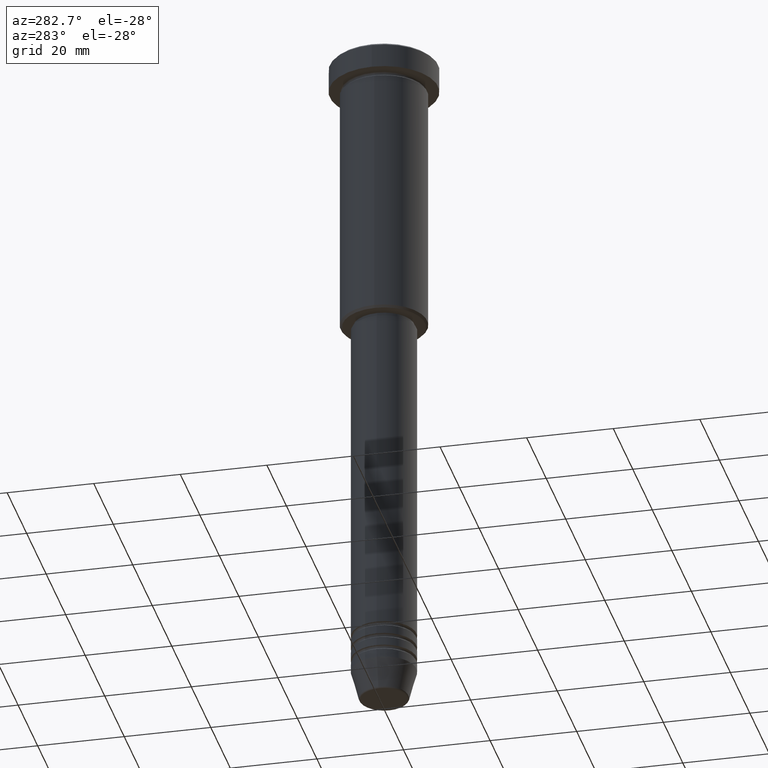
[diagram: clean part render]
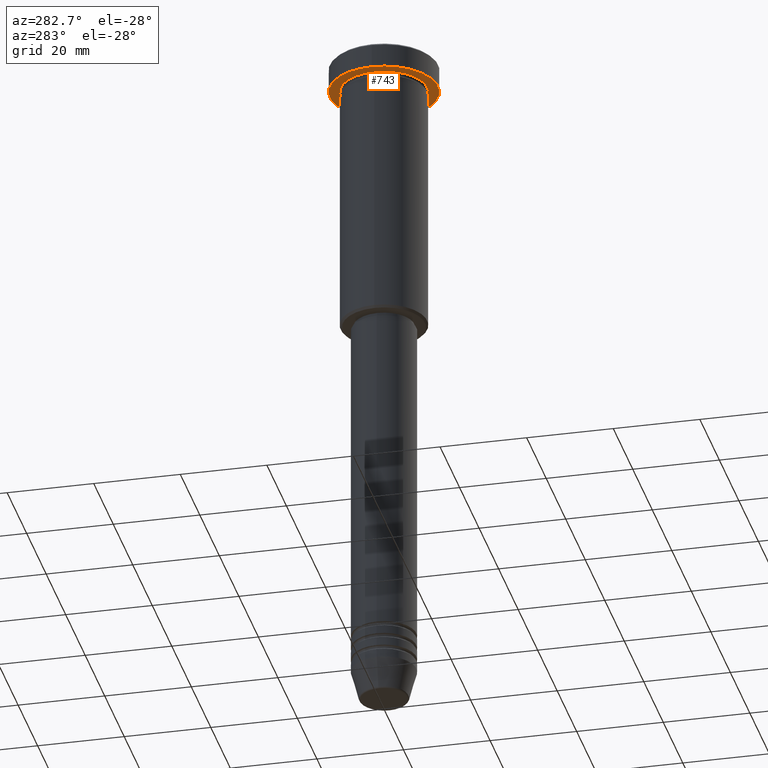
[diagram: same view with one face highlighted and labeled with its STEP entity id]
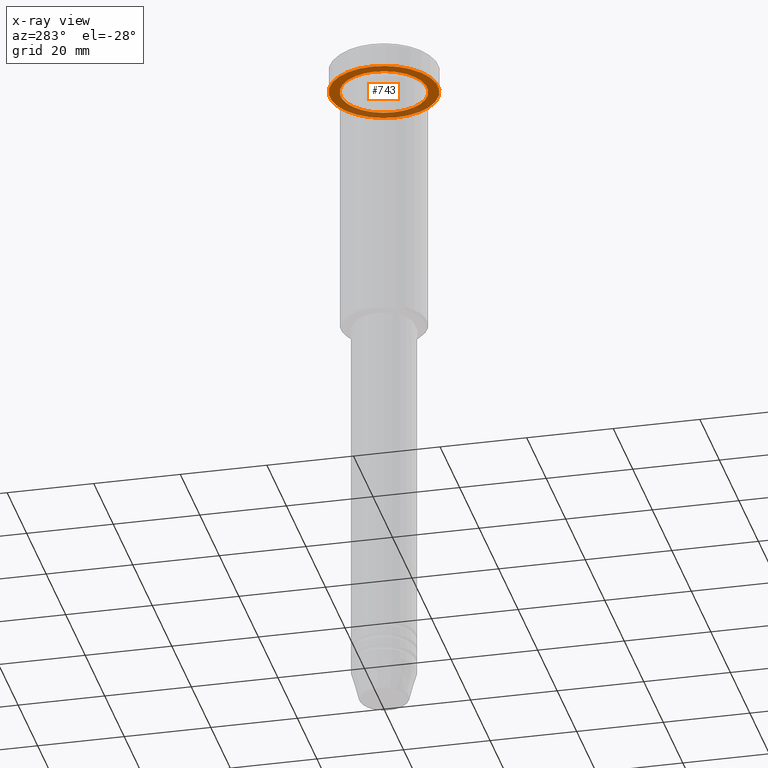
[diagram: x-ray of the same camera — body ghosted, the highlighted face saturated]
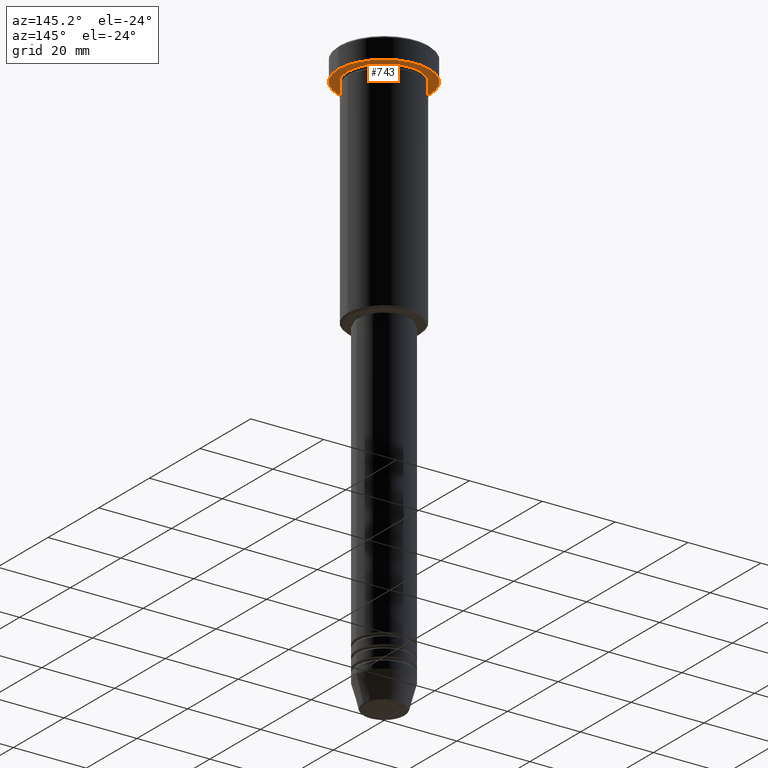
[diagram: same view with one face highlighted and labeled with its STEP entity id]
A machine part, auxiliary view. The second image highlights one B-rep face of the part: STEP entity #743.
The next image is the same camera in x-ray: the body ghosted, the highlighted face saturated — about 25% of this face is hidden behind the body in this view.
A second angle (auxiliary view) of the same face is appended — the face is thin or edge-on in the first view.
In plain terms, the highlighted planar face has unit normal (0, 0, -1).
Its self-contained STEP definition (entity closure, byte-faithful):
#9 = CIRCLE ( 'NONE', #1032, 12.50000000000000000 ) ;
#22 = CARTESIAN_POINT ( 'NONE',  ( 10.00000000000000000, 1.224646799147353256E-15, -5.999999999999996447 ) ) ;
#31 = CIRCLE ( 'NONE', #252, 10.00000000000000000 ) ;
#65 = ORIENTED_EDGE ( 'NONE', *, *, #182, .F. ) ;
#78 = DIRECTION ( 'NONE',  ( -1.000000000000000000, 0.000000000000000000, -0.000000000000000000 ) ) ;
#130 = ORIENTED_EDGE ( 'NONE', *, *, #472, .F. ) ;
#137 = EDGE_LOOP ( 'NONE', ( #130, #65 ) ) ;
#141 = DIRECTION ( 'NONE',  ( 0.000000000000000000, 0.000000000000000000, -1.000000000000000000 ) ) ;
#149 = ORIENTED_EDGE ( 'NONE', *, *, #1010, .T. ) ;
#151 = CIRCLE ( 'NONE', #438, 12.50000000000000000 ) ;
#182 = EDGE_CURVE ( 'NONE', #742, #812, #151, .T. ) ;
#203 = DIRECTION ( 'NONE',  ( -0.000000000000000000, -0.000000000000000000, 1.000000000000000000 ) ) ;
#231 = CARTESIAN_POINT ( 'NONE',  ( 0.000000000000000000, 12.50000000000000000, -5.999999999999996447 ) ) ;
#252 = AXIS2_PLACEMENT_3D ( 'NONE', #1030, #203, #838 ) ;
#293 = AXIS2_PLACEMENT_3D ( 'NONE', #231, #141, #78 ) ;
#320 = FACE_OUTER_BOUND ( 'NONE', #137, .T. ) ;
#349 = DIRECTION ( 'NONE',  ( 1.000000000000000000, 0.000000000000000000, 0.000000000000000000 ) ) ;
#391 = CARTESIAN_POINT ( 'NONE',  ( 0.000000000000000000, 0.000000000000000000, -5.999999999999996447 ) ) ;
#438 = AXIS2_PLACEMENT_3D ( 'NONE', #712, #988, #349 ) ;
#472 = EDGE_CURVE ( 'NONE', #812, #742, #9, .T. ) ;
#489 = EDGE_CURVE ( 'NONE', #906, #979, #899, .T. ) ;
#637 = ORIENTED_EDGE ( 'NONE', *, *, #489, .T. ) ;
#656 = CARTESIAN_POINT ( 'NONE',  ( -10.00000000000000000, 0.000000000000000000, -5.999999999999996447 ) ) ;
#679 = EDGE_LOOP ( 'NONE', ( #637, #149 ) ) ;
#682 = PLANE ( 'NONE',  #293 ) ;
#686 = AXIS2_PLACEMENT_3D ( 'NONE', #1107, #741, #753 ) ;
#712 = CARTESIAN_POINT ( 'NONE',  ( 0.000000000000000000, 0.000000000000000000, -5.999999999999996447 ) ) ;
#741 = DIRECTION ( 'NONE',  ( -0.000000000000000000, -0.000000000000000000, 1.000000000000000000 ) ) ;
#742 = VERTEX_POINT ( 'NONE', #773 ) ;
#743 = ADVANCED_FACE ( 'NONE', ( #1141, #320 ), #682, .T. ) ;
#747 = DIRECTION ( 'NONE',  ( 1.000000000000000000, 0.000000000000000000, 0.000000000000000000 ) ) ;
#753 = DIRECTION ( 'NONE',  ( -1.000000000000000000, 0.000000000000000000, 0.000000000000000000 ) ) ;
#773 = CARTESIAN_POINT ( 'NONE',  ( -12.50000000000000000, 1.530808498934191521E-15, -5.999999999999996447 ) ) ;
#812 = VERTEX_POINT ( 'NONE', #886 ) ;
#838 = DIRECTION ( 'NONE',  ( -1.000000000000000000, 0.000000000000000000, 0.000000000000000000 ) ) ;
#886 = CARTESIAN_POINT ( 'NONE',  ( 12.50000000000000000, 0.000000000000000000, -5.999999999999996447 ) ) ;
#899 = CIRCLE ( 'NONE', #686, 10.00000000000000000 ) ;
#906 = VERTEX_POINT ( 'NONE', #656 ) ;
#979 = VERTEX_POINT ( 'NONE', #22 ) ;
#988 = DIRECTION ( 'NONE',  ( -0.000000000000000000, -0.000000000000000000, 1.000000000000000000 ) ) ;
#1010 = EDGE_CURVE ( 'NONE', #979, #906, #31, .T. ) ;
#1030 = CARTESIAN_POINT ( 'NONE',  ( 0.000000000000000000, 0.000000000000000000, -5.999999999999996447 ) ) ;
#1032 = AXIS2_PLACEMENT_3D ( 'NONE', #391, #1119, #747 ) ;
#1107 = CARTESIAN_POINT ( 'NONE',  ( 0.000000000000000000, 0.000000000000000000, -5.999999999999996447 ) ) ;
#1119 = DIRECTION ( 'NONE',  ( -0.000000000000000000, -0.000000000000000000, 1.000000000000000000 ) ) ;
#1141 = FACE_BOUND ( 'NONE', #679, .T. ) ;